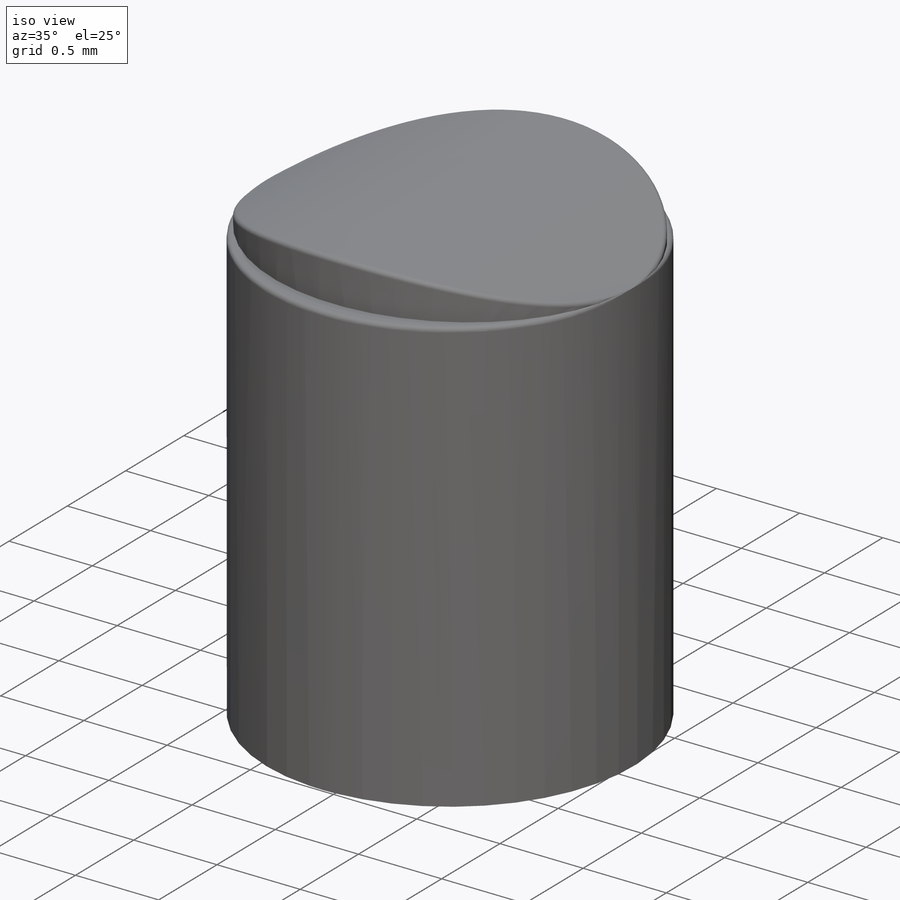
[diagram: iso view]
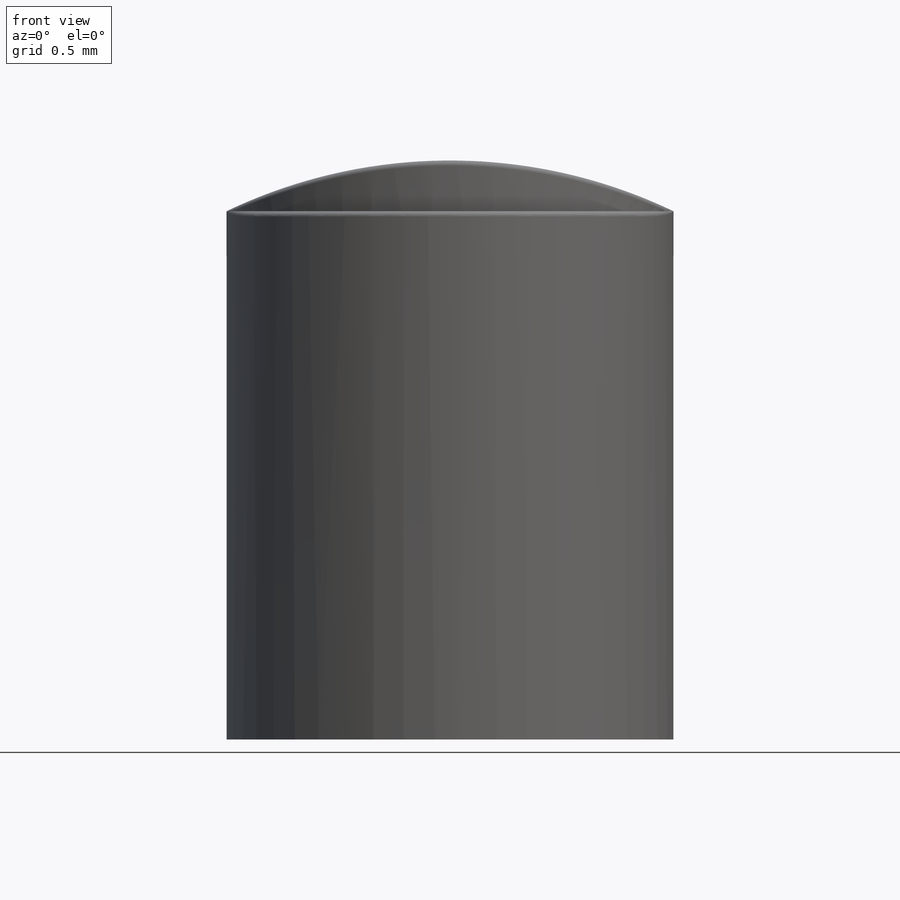
[diagram: front view]
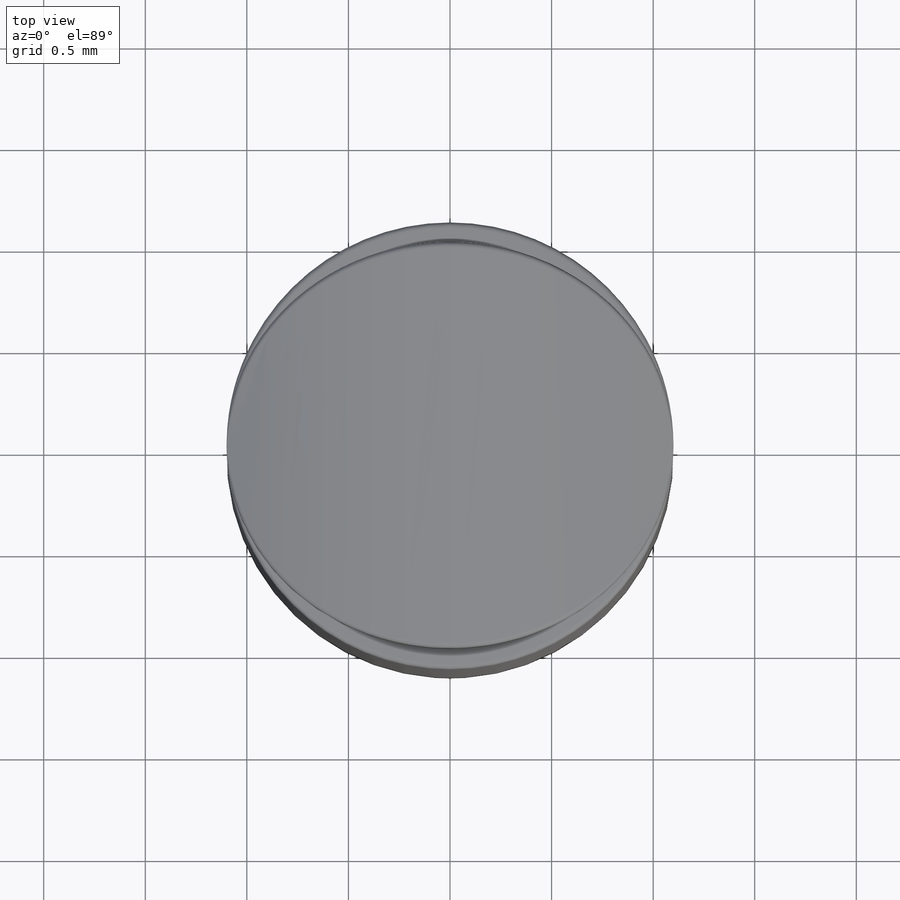
[diagram: top view]
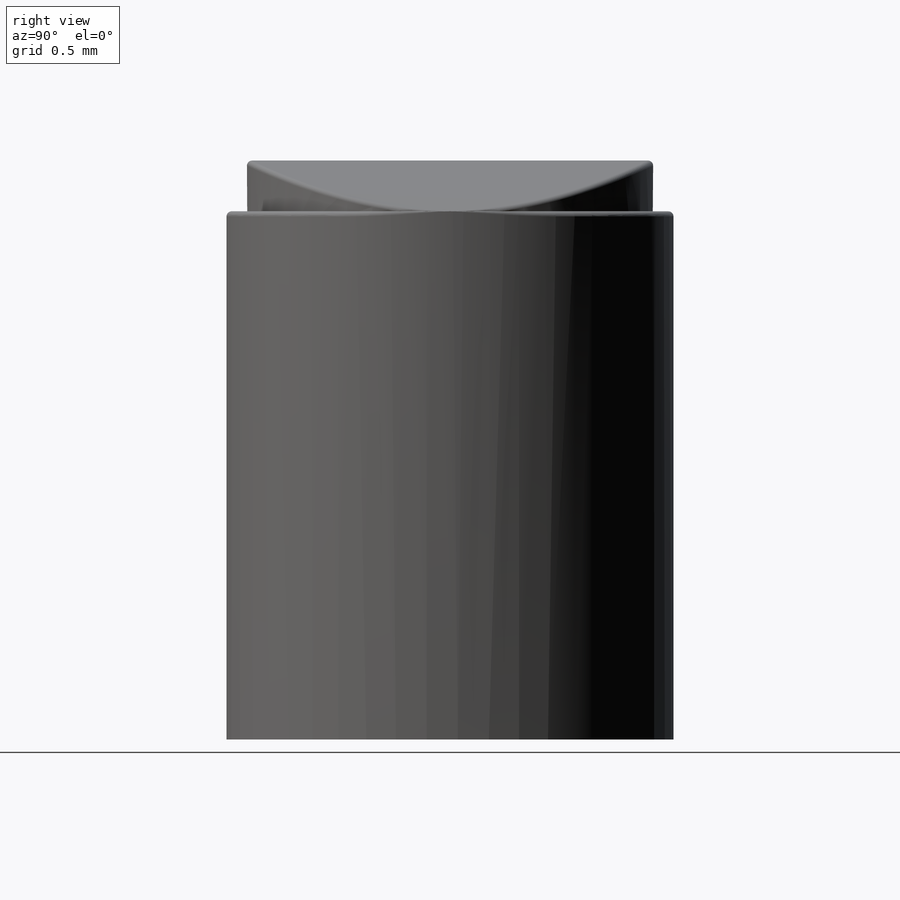
[diagram: right view]
SOLIDWORKS PART (.sldprt)
format: sldprt  version: not decoded by parser v0  size: 254,464 bytes
history: native  units: mm
features: sketch x3, extrude x2, material x1, cut_extrude x1, fillet x1 (+16 scaffold rows collapsed)
feature tree (24):
  scaffold x16  (default folders/planes/origin — collapsed)
  material  "PE Low/Medium Density"
  sketch  "Sketch1"  dims[D1=2.2mm]
  extrude  "Extrude1"  Depth=2.6mm
  sketch  "Sketch2"  dims[D1=1.0mm D2=1.1mm]
  extrude  "Extrude2"  Depth=0.25mm
  sketch  "Sketch3"  dims[D1=0.3mm D2=2.2mm D3=1.1mm D4=0.4mm]
  cut_extrude  "Extrude3"  Depth=2.2mm
  fillet  "Fillet1"  Radius=0.025mm
decode coverage: 7 of 7 modeling features carry decoded parameters
note: suppression state not decoded; provenance and decode notes live in map.json
